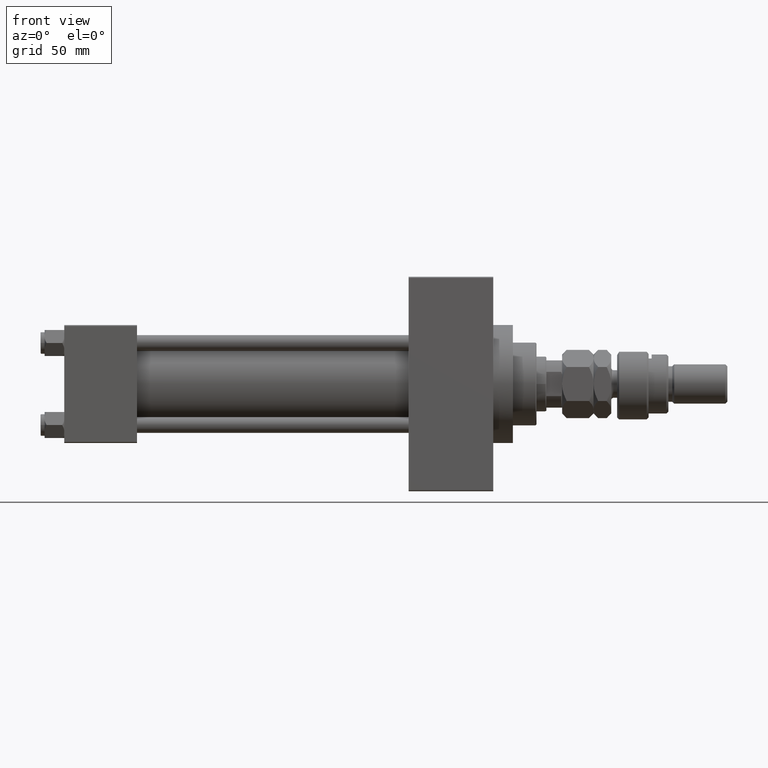
[diagram: clean part render]
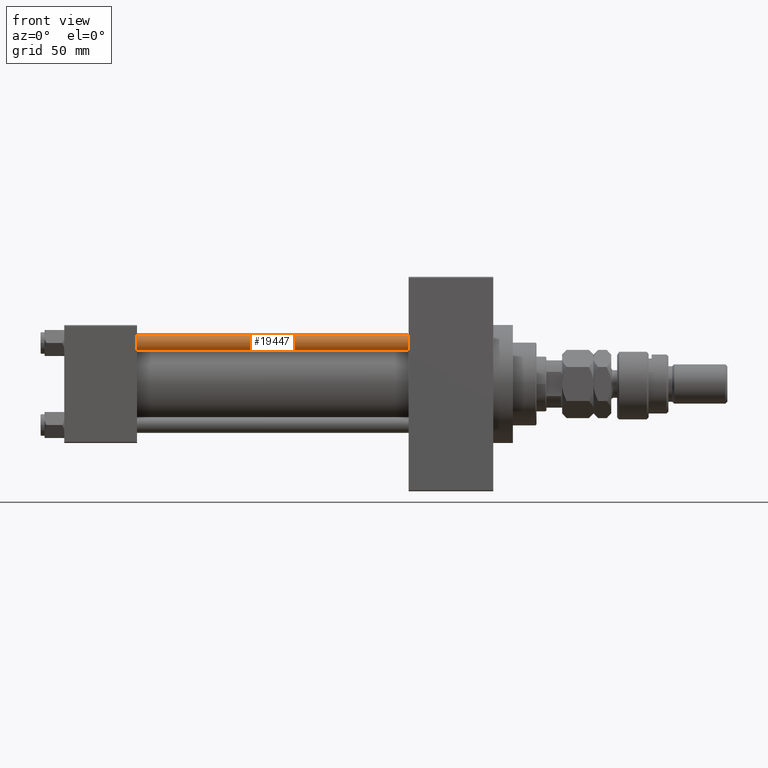
[diagram: same view with one face highlighted and labeled with its STEP entity id]
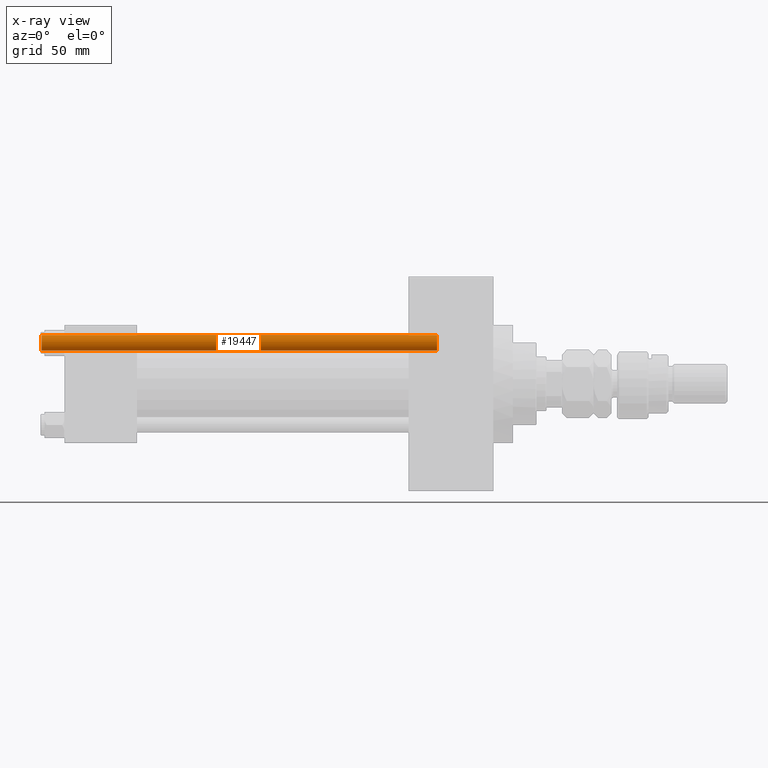
[diagram: x-ray of the same camera — body ghosted, the highlighted face saturated]
A machine part, front view. The second image highlights one B-rep face of the part: STEP entity #19447.
The next image is the same camera in x-ray: the body ghosted, the highlighted face saturated — about 0% of this face is hidden behind the body in this view.
In plain terms, the highlighted cylindrical surface (edge-blend (fillet) strip) has radius 4 mm, axis along (1, 0, 0).
Its self-contained STEP definition (entity closure, byte-faithful):
#618 = CARTESIAN_POINT ( 'NONE',  ( -4.000000000000000000, 0.000000000000000000, 201.5000000000000000 ) ) ;
#745 = CARTESIAN_POINT ( 'NONE',  ( 4.000000000000000000, 4.898587196589412829E-16, 0.5000000000000004441 ) ) ;
#824 = VERTEX_POINT ( 'NONE', #50092 ) ;
#5143 = CARTESIAN_POINT ( 'NONE',  ( 0.000000000000000000, 0.000000000000000000, 201.5000000000000000 ) ) ;
#7707 = CYLINDRICAL_SURFACE ( 'NONE', #50380, 4.000000000000000000 ) ;
#7812 = ORIENTED_EDGE ( 'NONE', *, *, #34574, .F. ) ;
#8756 = EDGE_CURVE ( 'NONE', #19739, #824, #33304, .T. ) ;
#9094 = VECTOR ( 'NONE', #22276, 1000.000000000000000 ) ;
#11949 = DIRECTION ( 'NONE',  ( -1.000000000000000000, 0.000000000000000000, 0.000000000000000000 ) ) ;
#14540 = DIRECTION ( 'NONE',  ( 1.000000000000000000, 0.000000000000000000, 0.000000000000000000 ) ) ;
#18459 = CIRCLE ( 'NONE', #19288, 4.000000000000000000 ) ;
#19288 = AXIS2_PLACEMENT_3D ( 'NONE', #5143, #21314, #37500 ) ;
#19447 = ADVANCED_FACE ( 'NONE', ( #44552 ), #7707, .T. ) ;
#19739 = VERTEX_POINT ( 'NONE', #745 ) ;
#20161 = CARTESIAN_POINT ( 'NONE',  ( 0.000000000000000000, 0.000000000000000000, 202.0000000000000000 ) ) ;
#21314 = DIRECTION ( 'NONE',  ( 0.000000000000000000, 0.000000000000000000, -1.000000000000000000 ) ) ;
#21385 = VERTEX_POINT ( 'NONE', #26450 ) ;
#22276 = DIRECTION ( 'NONE',  ( -0.000000000000000000, -0.000000000000000000, -1.000000000000000000 ) ) ;
#25426 = VECTOR ( 'NONE', #47525, 1000.000000000000000 ) ;
#26450 = CARTESIAN_POINT ( 'NONE',  ( 4.000000000000000000, 4.898587196589412829E-16, 201.5000000000000000 ) ) ;
#26974 = CARTESIAN_POINT ( 'NONE',  ( 0.000000000000000000, 0.000000000000000000, 0.5000000000000004441 ) ) ;
#28215 = EDGE_CURVE ( 'NONE', #21385, #19739, #37943, .T. ) ;
#29946 = AXIS2_PLACEMENT_3D ( 'NONE', #26974, #50618, #14540 ) ;
#31824 = CARTESIAN_POINT ( 'NONE',  ( -4.000000000000000000, 0.000000000000000000, 202.0000000000000000 ) ) ;
#33304 = CIRCLE ( 'NONE', #29946, 4.000000000000000000 ) ;
#34574 = EDGE_CURVE ( 'NONE', #38290, #824, #39817, .T. ) ;
#35834 = DIRECTION ( 'NONE',  ( -0.000000000000000000, -0.000000000000000000, -1.000000000000000000 ) ) ;
#36623 = ORIENTED_EDGE ( 'NONE', *, *, #48007, .T. ) ;
#37500 = DIRECTION ( 'NONE',  ( 1.000000000000000000, 0.000000000000000000, 0.000000000000000000 ) ) ;
#37943 = LINE ( 'NONE', #50139, #9094 ) ;
#38290 = VERTEX_POINT ( 'NONE', #618 ) ;
#39817 = LINE ( 'NONE', #31824, #25426 ) ;
#42515 = EDGE_LOOP ( 'NONE', ( #36623, #51910, #51265, #7812 ) ) ;
#44552 = FACE_OUTER_BOUND ( 'NONE', #42515, .T. ) ;
#47525 = DIRECTION ( 'NONE',  ( -0.000000000000000000, -0.000000000000000000, -1.000000000000000000 ) ) ;
#48007 = EDGE_CURVE ( 'NONE', #38290, #21385, #18459, .T. ) ;
#50092 = CARTESIAN_POINT ( 'NONE',  ( -4.000000000000000000, 0.000000000000000000, 0.5000000000000004441 ) ) ;
#50139 = CARTESIAN_POINT ( 'NONE',  ( 4.000000000000000000, 4.898587196589412829E-16, 202.0000000000000000 ) ) ;
#50380 = AXIS2_PLACEMENT_3D ( 'NONE', #20161, #35834, #11949 ) ;
#50618 = DIRECTION ( 'NONE',  ( -0.000000000000000000, -0.000000000000000000, 1.000000000000000000 ) ) ;
#51265 = ORIENTED_EDGE ( 'NONE', *, *, #8756, .T. ) ;
#51910 = ORIENTED_EDGE ( 'NONE', *, *, #28215, .T. ) ;